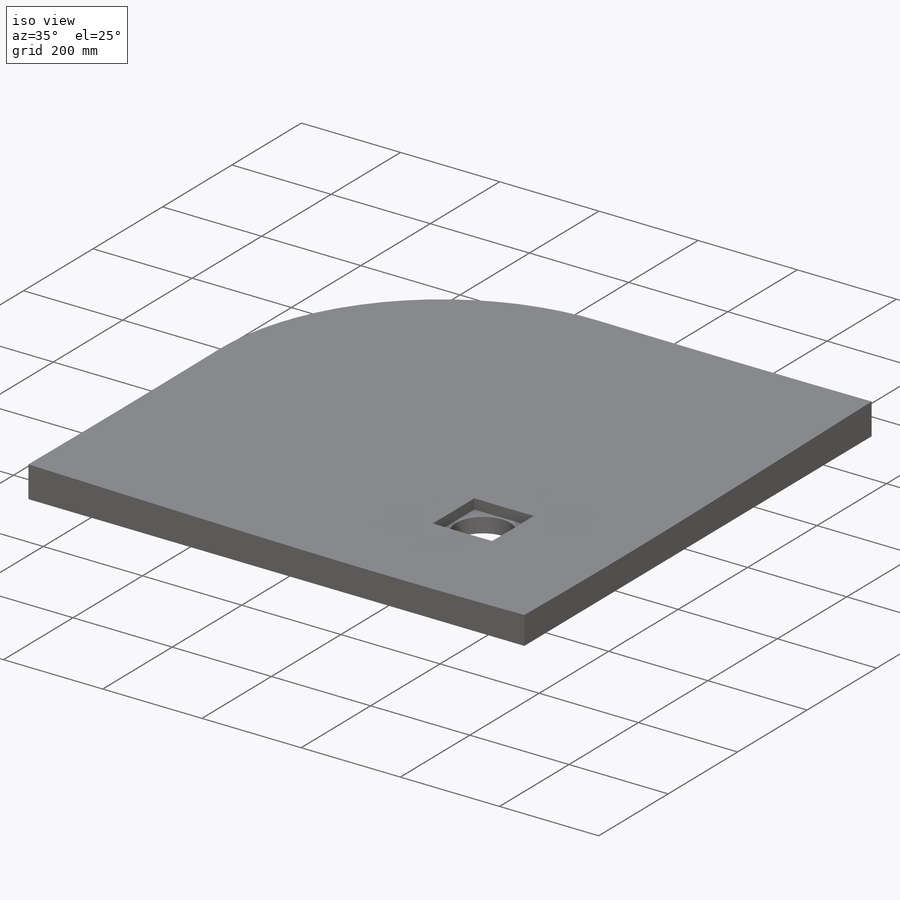
[diagram: iso view]
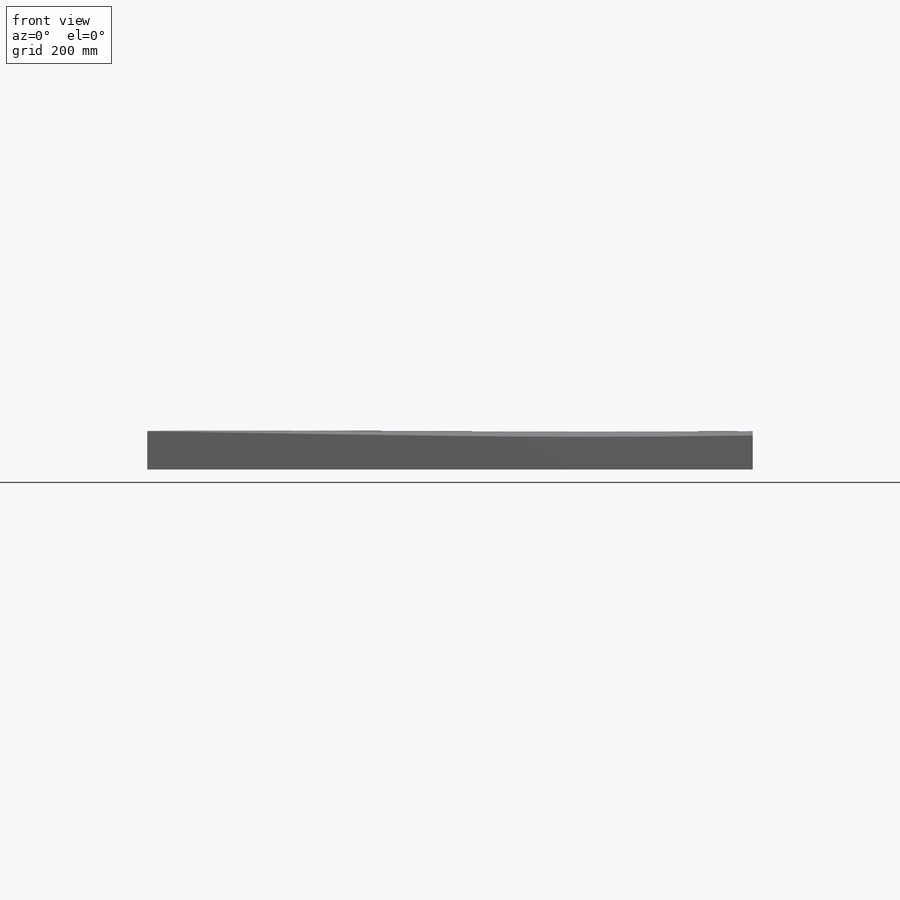
[diagram: front view]
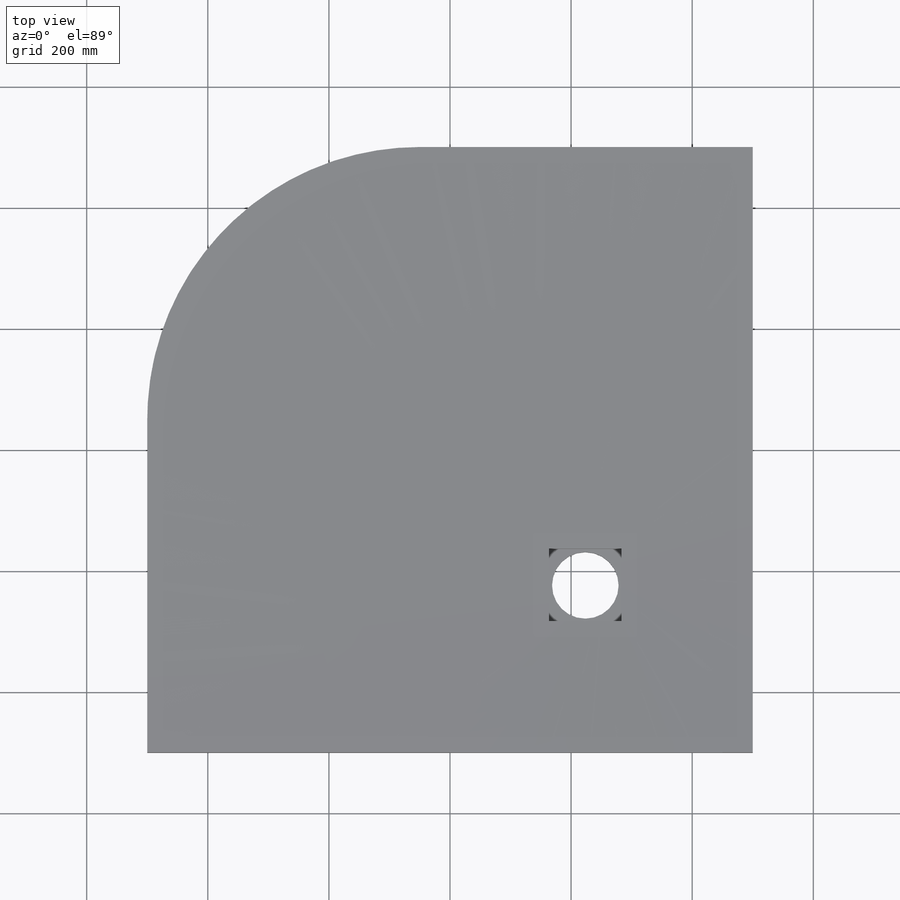
[diagram: top view]
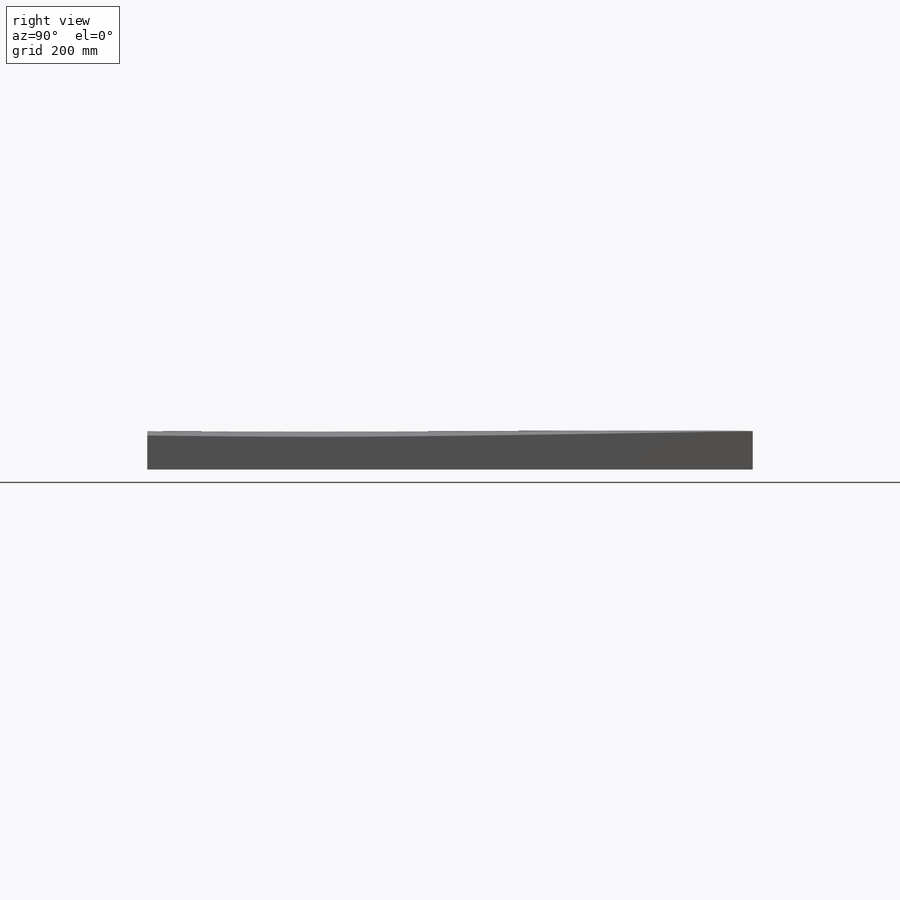
[diagram: right view]
SOLIDWORKS PART (.sldprt)
format: sldprt  version: not decoded by parser v0  size: 205,312 bytes
history: native  units: mm
features: sketch x10, plane x5, cut_extrude x3, surface_op x2, extrude x2, boolean_combine x2, material x1 (+8 scaffold rows collapsed)
feature tree (33):
  scaffold x8  (default folders/planes/origin — collapsed)
  material  "Material <nicht festgelegt>"
  plane  "Ebene vorne"
  plane  "Ebene oben"
  plane  "Ebene rechts"
  sketch  "Skizze1"  dims[D1=1000.0mm D2=276.5mm D3=276.5mm]
  sketch  "3D-Skizze1"  dims[D1=20.0mm]
  surface_op  "Oberfläche-Linear austragen1"
  plane  "Ebene1"
  sketch  "Skizze2"  dims[D1=110.0mm]
  sketch  "Skizze3"
  extrude  "Aufsatz-Linear austragen1"  [1 undecoded]
  sketch  "Skizze1<3>"  dims[D1=70.0mm]
  cut_extrude  "Schnitt-Linear austragen1"  [1 undecoded]
  sketch  "Skizze2<2>"
  boolean_combine  "Kombinieren1"
  extrude  "Aufsatz-Linear austragen2"  [1 undecoded]
  sketch  "Skizze1<4>"  dims[D1=70.0mm]
  boolean_combine  "Kombinieren2"
  sketch  "Skizze4"
  cut_extrude  "Schnitt-Linear austragen2"  [1 undecoded]
  sketch  "Skizze5"  dims[D1=450.0mm]
  surface_op  "Oberfläche-Linear austragen2"
  plane  "Ebene2"
  sketch  "Skizze7"  dims[D1=120.0mm]
  cut_extrude  "Schnitt-Linear austragen3"  Depth=20mm
decode coverage: 8 of 19 modeling features carry decoded parameters
note: 4 parameter values undecoded
summary: no parameter record found for 4 features
note: suppression state not decoded; provenance and decode notes live in map.json
